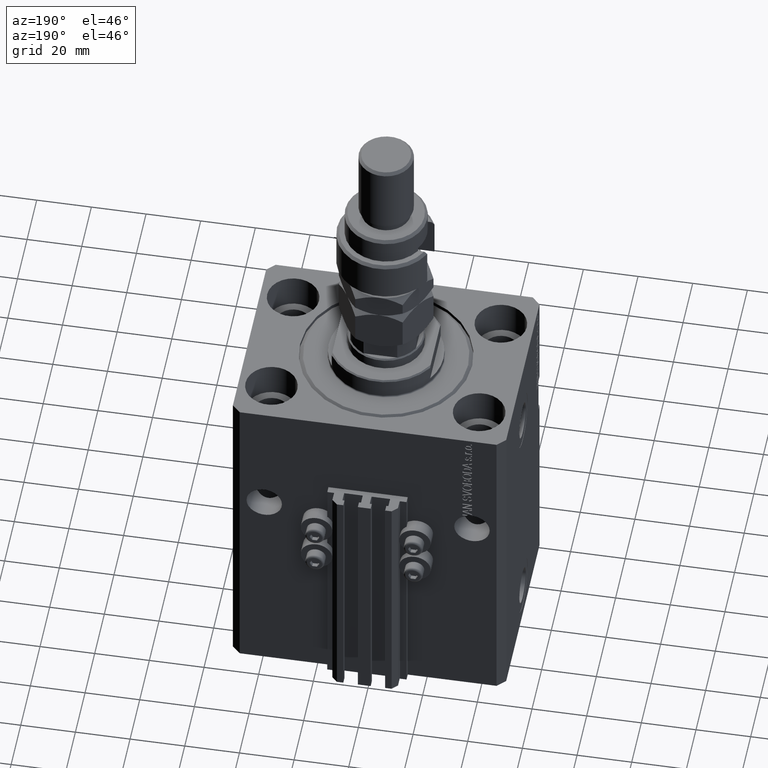
[diagram: clean part render]
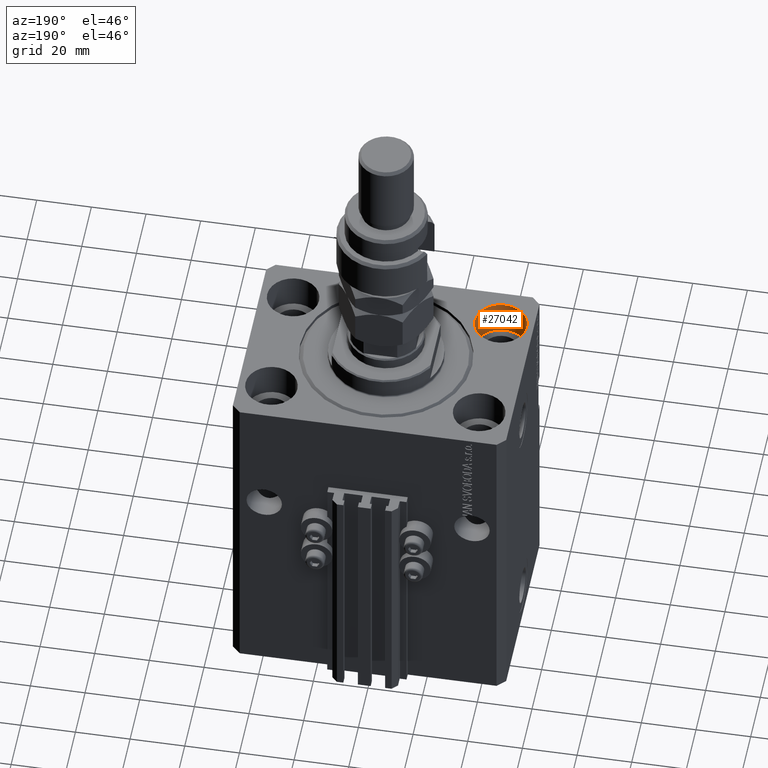
[diagram: same view with one face highlighted and labeled with its STEP entity id]
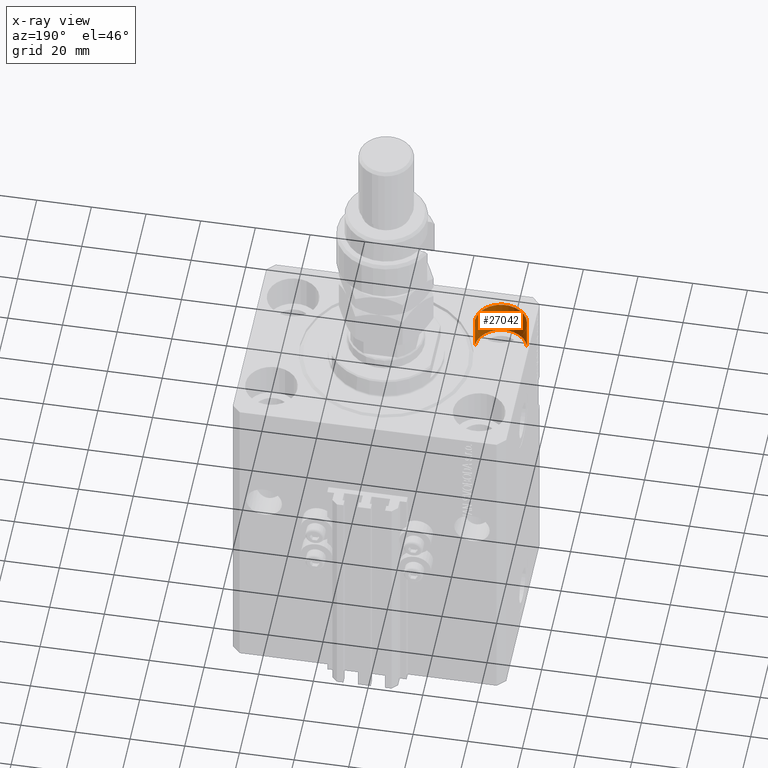
[diagram: x-ray of the same camera — body ghosted, the highlighted face saturated]
A machine part, auxiliary view. The second image highlights one B-rep face of the part: STEP entity #27042.
The next image is the same camera in x-ray: the body ghosted, the highlighted face saturated — about 0% of this face is hidden behind the body in this view.
In plain terms, the highlighted cylindrical surface (edge-blend (fillet) strip) has radius 9.5 mm, axis along (0, 0, 1).
Its self-contained STEP definition (entity closure, byte-faithful):
#289 = EDGE_CURVE ( 'NONE', #30758, #8376, #21786, .T. ) ;
#2965 = CARTESIAN_POINT ( 'NONE',  ( -38.00000000000000711, -22.50000000000000000, -13.00000000000000000 ) ) ;
#3550 = CARTESIAN_POINT ( 'NONE',  ( -47.50000000000000711, -22.50000000000000000, 0.000000000000000000 ) ) ;
#4715 = DIRECTION ( 'NONE',  ( 0.000000000000000000, 0.000000000000000000, 1.000000000000000000 ) ) ;
#5078 = DIRECTION ( 'NONE',  ( 1.000000000000000000, 0.000000000000000000, 0.000000000000000000 ) ) ;
#5209 = DIRECTION ( 'NONE',  ( 1.000000000000000000, 0.000000000000000000, 0.000000000000000000 ) ) ;
#5492 = AXIS2_PLACEMENT_3D ( 'NONE', #43904, #24474, #5078 ) ;
#8376 = VERTEX_POINT ( 'NONE', #23578 ) ;
#9060 = VERTEX_POINT ( 'NONE', #32565 ) ;
#15422 = EDGE_CURVE ( 'NONE', #24311, #9060, #40571, .T. ) ;
#18281 = DIRECTION ( 'NONE',  ( -0.000000000000000000, -0.000000000000000000, 1.000000000000000000 ) ) ;
#20192 = CARTESIAN_POINT ( 'NONE',  ( -47.50000000000000711, -22.50000000000000000, -13.00000000000000000 ) ) ;
#21786 = CIRCLE ( 'NONE', #28283, 9.500000000000001776 ) ;
#23578 = CARTESIAN_POINT ( 'NONE',  ( -28.50000000000000355, -22.50000000000000000, 0.000000000000000000 ) ) ;
#24311 = VERTEX_POINT ( 'NONE', #20192 ) ;
#24474 = DIRECTION ( 'NONE',  ( 0.000000000000000000, 0.000000000000000000, 1.000000000000000000 ) ) ;
#25808 = ORIENTED_EDGE ( 'NONE', *, *, #15422, .F. ) ;
#27042 = ADVANCED_FACE ( 'NONE', ( #42543 ), #49933, .F. ) ;
#28259 = LINE ( 'NONE', #43863, #30156 ) ;
#28283 = AXIS2_PLACEMENT_3D ( 'NONE', #45857, #4715, #5209 ) ;
#30156 = VECTOR ( 'NONE', #18281, 1000.000000000000000 ) ;
#30526 = DIRECTION ( 'NONE',  ( -0.000000000000000000, -0.000000000000000000, 1.000000000000000000 ) ) ;
#30758 = VERTEX_POINT ( 'NONE', #3550 ) ;
#32001 = ORIENTED_EDGE ( 'NONE', *, *, #48657, .F. ) ;
#32338 = EDGE_LOOP ( 'NONE', ( #25808, #47928, #44376, #32001 ) ) ;
#32565 = CARTESIAN_POINT ( 'NONE',  ( -28.50000000000000355, -22.50000000000000000, -13.00000000000000000 ) ) ;
#34729 = VECTOR ( 'NONE', #50455, 1000.000000000000000 ) ;
#36570 = EDGE_CURVE ( 'NONE', #24311, #30758, #41806, .T. ) ;
#40571 = CIRCLE ( 'NONE', #5492, 9.500000000000001776 ) ;
#41793 = DIRECTION ( 'NONE',  ( 1.000000000000000000, 0.000000000000000000, 0.000000000000000000 ) ) ;
#41806 = LINE ( 'NONE', #42313, #34729 ) ;
#42313 = CARTESIAN_POINT ( 'NONE',  ( -47.50000000000000711, -22.50000000000000000, -13.00000000000000000 ) ) ;
#42543 = FACE_OUTER_BOUND ( 'NONE', #32338, .T. ) ;
#43863 = CARTESIAN_POINT ( 'NONE',  ( -28.50000000000000355, -22.50000000000000000, -13.00000000000000000 ) ) ;
#43904 = CARTESIAN_POINT ( 'NONE',  ( -38.00000000000000711, -22.50000000000000000, -13.00000000000000000 ) ) ;
#44376 = ORIENTED_EDGE ( 'NONE', *, *, #289, .T. ) ;
#45857 = CARTESIAN_POINT ( 'NONE',  ( -38.00000000000000711, -22.50000000000000000, 0.000000000000000000 ) ) ;
#46569 = AXIS2_PLACEMENT_3D ( 'NONE', #2965, #30526, #41793 ) ;
#47928 = ORIENTED_EDGE ( 'NONE', *, *, #36570, .T. ) ;
#48657 = EDGE_CURVE ( 'NONE', #9060, #8376, #28259, .T. ) ;
#49933 = CYLINDRICAL_SURFACE ( 'NONE', #46569, 9.500000000000001776 ) ;
#50455 = DIRECTION ( 'NONE',  ( -0.000000000000000000, -0.000000000000000000, 1.000000000000000000 ) ) ;